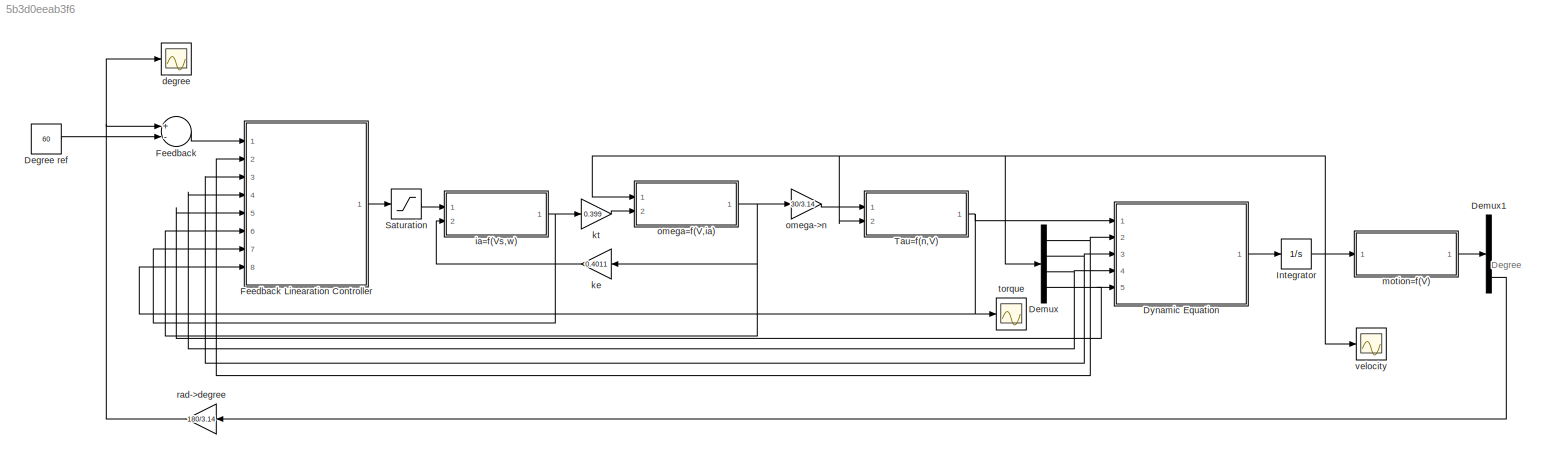
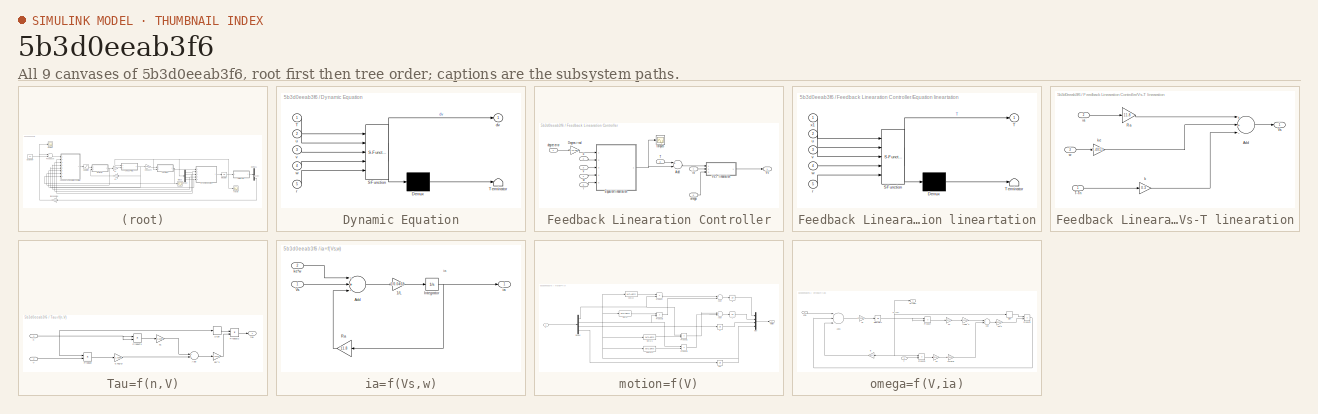
[diagram: thumbnail index - all 9 canvases of the model, root first then tree order]
MODEL slx_5b3d0eeab3f6
KIND model
CONFIG AbsTol = auto
CONFIG FixedStep = auto
CONFIG MaxStep = auto
CONFIG MinStep = auto
CONFIG RelTol = 1e-3
CONFIG SampleTimeConstraint = Unconstrained
CONFIG Solver = VariableStepAuto
CONFIG SolverMode = Auto
CONFIG SolverName = VariableStepAuto
CONFIG StartTime = 0.0
CONFIG StopTime = 30
BLOCK [Constant] Degree ref
  Value = 60
BLOCK [Demux] Demux
  DisplayOption = bar
  Ports = [1, 4]
BLOCK [Demux] Demux1
  DisplayOption = bar
  Ports = [1, 4]
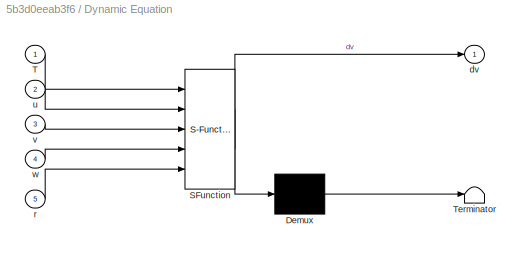
BLOCK [SubSystem] Dynamic Equation
  ErrorFcn = Stateflow.Translate.translate
  PermitHierarchicalResolution = ExplicitOnly
  Ports = [5, 1]
  RequestExecContextInheritance = off
  SFBlockType = MATLAB Function
  TreatAsAtomicUnit = on
  Variant = off
BLOCK [Demux] Dynamic Equation/ Demux 
  Outputs = 1
  Ports = [1, 1]
BLOCK [S-Function] Dynamic Equation/ SFunction 
  EnableBusSupport = on
  FunctionName = sf_sfun
  PortCounts = [5 2]
  Ports = [5, 2]
  SFunctionDeploymentMode = off
  Tag = Stateflow S-Function Feedback_Linearization_Controller 1
BLOCK [Terminator] Dynamic Equation/ Terminator 
BLOCK [Inport] Dynamic Equation/T
  IconDisplay = Port number
BLOCK [Outport] Dynamic Equation/dv
  IconDisplay = Port number
BLOCK [Inport] Dynamic Equation/r
  IconDisplay = Port number
  Port = 5
BLOCK [Inport] Dynamic Equation/u
  IconDisplay = Port number
  Port = 2
BLOCK [Inport] Dynamic Equation/v
  IconDisplay = Port number
  Port = 3
BLOCK [Inport] Dynamic Equation/w
  IconDisplay = Port number
  Port = 4
BLOCK [Sum] Feedback
  InputSameDT = off
  Inputs = +-
  OutDataTypeStr = Inherit: Inherit via internal rule
  Ports = [2, 1]
  SaturateOnIntegerOverflow = off
BLOCK [SubSystem] Feedback Linearation Controller
  Ports = [8, 1]
  RequestExecContextInheritance = off
  Variant = off
BLOCK [Sum] Feedback Linearation Controller/Add
  InputSameDT = off
  Inputs = +-
  OutDataTypeStr = Inherit: Inherit via internal rule
  Ports = [2, 1]
  SaturateOnIntegerOverflow = off
BLOCK [Gain] Feedback Linearation Controller/Degree->rad
  Gain = 3.14/180
  OutDataTypeStr = Inherit: Inherit via internal rule
  ParamDataTypeStr = Inherit: Inherit via internal rule
  SaturateOnIntegerOverflow = off
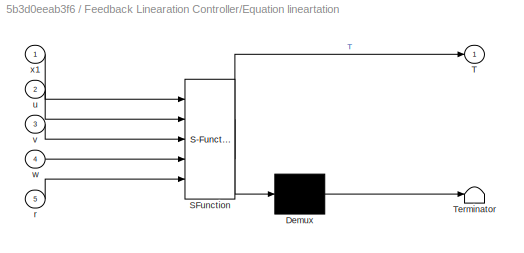
BLOCK [SubSystem] Feedback Linearation Controller/Equation lineartation
  ErrorFcn = Stateflow.Translate.translate
  PermitHierarchicalResolution = ExplicitOnly
  Ports = [5, 1]
  RequestExecContextInheritance = off
  SFBlockType = MATLAB Function
  TreatAsAtomicUnit = on
  Variant = off
BLOCK [Demux] Feedback Linearation Controller/Equation lineartation/ Demux 
  Outputs = 1
  Ports = [1, 1]
BLOCK [S-Function] Feedback Linearation Controller/Equation lineartation/ SFunction 
  EnableBusSupport = on
  FunctionName = sf_sfun
  PortCounts = [5 2]
  Ports = [5, 2]
  SFunctionDeploymentMode = off
  Tag = Stateflow S-Function Feedback_Linearization_Controller 3
BLOCK [Terminator] Feedback Linearation Controller/Equation lineartation/ Terminator 
BLOCK [Outport] Feedback Linearation Controller/Equation lineartation/T
  IconDisplay = Port number
BLOCK [Inport] Feedback Linearation Controller/Equation lineartation/r
  IconDisplay = Port number
  Port = 5
BLOCK [Inport] Feedback Linearation Controller/Equation lineartation/u
  IconDisplay = Port number
  Port = 2
BLOCK [Inport] Feedback Linearation Controller/Equation lineartation/v
  IconDisplay = Port number
  Port = 3
BLOCK [Inport] Feedback Linearation Controller/Equation lineartation/w
  IconDisplay = Port number
  Port = 4
BLOCK [Inport] Feedback Linearation Controller/Equation lineartation/x1
  IconDisplay = Port number
BLOCK [Inport] Feedback Linearation Controller/T
  IconDisplay = Port number
  Port = 8
BLOCK [Outport] Feedback Linearation Controller/Vs
  IconDisplay = Port number
BLOCK [SubSystem] Feedback Linearation Controller/Vs-T linearation
  Ports = [3, 1]
  RequestExecContextInheritance = off
  Variant = off
BLOCK [Sum] Feedback Linearation Controller/Vs-T linearation/Add
  InputSameDT = off
  Inputs = ++-
  OutDataTypeStr = Inherit: Inherit via internal rule
  Ports = [3, 1]
  SaturateOnIntegerOverflow = off
BLOCK [Gain] Feedback Linearation Controller/Vs-T linearation/Ra
  Gain = 11.8
  OutDataTypeStr = Inherit: Inherit via internal rule
  ParamDataTypeStr = Inherit: Inherit via internal rule
  SaturateOnIntegerOverflow = off
BLOCK [Inport] Feedback Linearation Controller/Vs-T linearation/T-Tn
  IconDisplay = Port number
BLOCK [Outport] Feedback Linearation Controller/Vs-T linearation/Vs
  IconDisplay = Port number
BLOCK [Inport] Feedback Linearation Controller/Vs-T linearation/ia
  IconDisplay = Port number
  Port = 2
BLOCK [Gain] Feedback Linearation Controller/Vs-T linearation/k
  Gain = 0.3
  OutDataTypeStr = Inherit: Inherit via internal rule
  ParamDataTypeStr = Inherit: Inherit via internal rule
  SaturateOnIntegerOverflow = off
BLOCK [Gain] Feedback Linearation Controller/Vs-T linearation/ke
  Gain = 0.4011
  OutDataTypeStr = Inherit: Inherit via internal rule
  ParamDataTypeStr = Inherit: Inherit via internal rule
  SaturateOnIntegerOverflow = off
BLOCK [Inport] Feedback Linearation Controller/Vs-T linearation/w
  IconDisplay = Port number
  Port = 3
BLOCK [Inport] Feedback Linearation Controller/degree error
  IconDisplay = Port number
BLOCK [Inport] Feedback Linearation Controller/ia
  IconDisplay = Port number
  Port = 7
BLOCK [Inport] Feedback Linearation Controller/omega
  IconDisplay = Port number
  Port = 6
BLOCK [Inport] Feedback Linearation Controller/r
  IconDisplay = Port number
  Port = 5
BLOCK [Scope] Feedback Linearation Controller/torque3
  Ports = [1]
  ScopeSpecificationString = Simulink.scopes.TimeScopeBlockCfg('CurrentConfiguration', extmgr.ConfigurationSet(extmgr.Configuration('Core','General UI',true),extmgr.Configuration('Core','Source UI',true),extmgr.Configuration('Sources','WiredSimulink',true,'DataLoggingVariableName','ScopeData2'),extmgr.Configuration('Visuals','Time Domain',true,'SerializedDisplays',{struct('MinYLimReal','-1.60445','MaxYLimReal','9.58536','YLab...<+1506ch>
BLOCK [Inport] Feedback Linearation Controller/u
  IconDisplay = Port number
  Port = 2
BLOCK [Inport] Feedback Linearation Controller/v
  IconDisplay = Port number
  Port = 3
BLOCK [Inport] Feedback Linearation Controller/w
  IconDisplay = Port number
  Port = 4
BLOCK [Integrator] Integrator
  Ports = [1, 1]
BLOCK [Saturate] Saturation
  InputPortMap = u0
  LowerLimit = -100
  Ports = [1, 1]
  UpperLimit = 100
BLOCK [SubSystem] Tau=f(n,V)
  Ports = [2, 1]
  RequestExecContextInheritance = off
  Variant = off
BLOCK [Gain] Tau=f(n,V)/0.7a2//D
  Gain = -1.0366
  OutDataTypeStr = Inherit: Inherit via internal rule
  ParamDataTypeStr = Inherit: Inherit via internal rule
  SaturateOnIntegerOverflow = off
BLOCK [Sum] Tau=f(n,V)/Add
  InputSameDT = off
  OutDataTypeStr = Inherit: Inherit via internal rule
  Ports = [2, 1]
  SaturateOnIntegerOverflow = off
BLOCK [Product] Tau=f(n,V)/Product
  InputSameDT = off
  OutDataTypeStr = Inherit: Inherit via internal rule
  Ports = [2, 1]
  RndMeth = Floor
  SaturateOnIntegerOverflow = off
BLOCK [Product] Tau=f(n,V)/Product1
  InputSameDT = off
  OutDataTypeStr = Inherit: Inherit via internal rule
  Ports = [2, 1]
  RndMeth = Floor
  SaturateOnIntegerOverflow = off
BLOCK [Product] Tau=f(n,V)/Product2
  InputSameDT = off
  OutDataTypeStr = Inherit: Inherit via internal rule
  Ports = [2, 1]
  RndMeth = Floor
  SaturateOnIntegerOverflow = off
BLOCK [Signum] Tau=f(n,V)/Sign
BLOCK [Inport] Tau=f(n,V)/V
  IconDisplay = Port number
  Port = 2
BLOCK [Gain] Tau=f(n,V)/a1
  Gain = 0.2299
  OutDataTypeStr = Inherit: Inherit via internal rule
  ParamDataTypeStr = Inherit: Inherit via internal rule
  SaturateOnIntegerOverflow = off
BLOCK [Inport] Tau=f(n,V)/n
  IconDisplay = Port number
BLOCK [Gain] Tau=f(n,V)/pD^4
  Gain = 0.5471
  OutDataTypeStr = Inherit: Inherit via internal rule
  ParamDataTypeStr = Inherit: Inherit via internal rule
  SaturateOnIntegerOverflow = off
BLOCK [Outport] Tau=f(n,V)/tau
  IconDisplay = Port number
BLOCK [Scope] degree
  Ports = [1]
  ScopeSpecificationString = Simulink.scopes.TimeScopeBlockCfg('CurrentConfiguration', extmgr.ConfigurationSet(extmgr.Configuration('Core','General UI',true),extmgr.Configuration('Core','Source UI',true),extmgr.Configuration('Sources','WiredSimulink',true,'DataLoggingVariableName','ScopeData3','DataLogging',true,'DataLoggingSaveFormat','Array'),extmgr.Configuration('Visuals','Time Domain',true,'SerializedDisplays',{struct('Mi...<+1471ch>
BLOCK [SubSystem] ia=f(Vs,w)
  Ports = [2, 1]
  RequestExecContextInheritance = off
  Variant = off
BLOCK [Gain] ia=f(Vs,w)/1//L
  Gain = 1/0.0468
  OutDataTypeStr = Inherit: Inherit via internal rule
  ParamDataTypeStr = Inherit: Inherit via internal rule
  SaturateOnIntegerOverflow = off
BLOCK [Sum] ia=f(Vs,w)/Add
  InputSameDT = off
  Inputs = -+-
  OutDataTypeStr = Inherit: Inherit via internal rule
  Ports = [3, 1]
  SaturateOnIntegerOverflow = off
BLOCK [Integrator] ia=f(Vs,w)/Integrator
  Ports = [1, 1]
BLOCK [Gain] ia=f(Vs,w)/Ra
  Gain = 11.8
  OutDataTypeStr = Inherit: Inherit via internal rule
  ParamDataTypeStr = Inherit: Inherit via internal rule
  SaturateOnIntegerOverflow = off
BLOCK [Inport] ia=f(Vs,w)/Vs
  IconDisplay = Port number
BLOCK [Outport] ia=f(Vs,w)/ia
  IconDisplay = Port number
BLOCK [Inport] ia=f(Vs,w)/ke*w
  IconDisplay = Port number
  Port = 2
BLOCK [Gain] ke
  Gain = 0.4011
  OutDataTypeStr = Inherit: Inherit via internal rule
  ParamDataTypeStr = Inherit: Inherit via internal rule
  SaturateOnIntegerOverflow = off
BLOCK [Gain] kt
  Gain = 0.399
  OutDataTypeStr = Inherit: Inherit via internal rule
  ParamDataTypeStr = Inherit: Inherit via internal rule
  SaturateOnIntegerOverflow = off
BLOCK [SubSystem] motion=f(V)
  Ports = [1, 1]
  RequestExecContextInheritance = off
  Variant = off
BLOCK [Demux] motion=f(V)/Demux
  DisplayOption = bar
  Ports = [1, 4]
BLOCK [Mux] motion=f(V)/Mux
  DisplayOption = bar
  Ports = [4, 1]
BLOCK [Product] motion=f(V)/Product
  InputSameDT = off
  OutDataTypeStr = Inherit: Inherit via internal rule
  Ports = [2, 1]
  RndMeth = Floor
  SaturateOnIntegerOverflow = off
BLOCK [Product] motion=f(V)/Product1
  InputSameDT = off
  OutDataTypeStr = Inherit: Inherit via internal rule
  Ports = [2, 1]
  RndMeth = Floor
  SaturateOnIntegerOverflow = off
BLOCK [Product] motion=f(V)/Product2
  InputSameDT = off
  OutDataTypeStr = Inherit: Inherit via internal rule
  Ports = [2, 1]
  RndMeth = Floor
  SaturateOnIntegerOverflow = off
BLOCK [Product] motion=f(V)/Product3
  InputSameDT = off
  OutDataTypeStr = Inherit: Inherit via internal rule
  Ports = [2, 1]
  RndMeth = Floor
  SaturateOnIntegerOverflow = off
BLOCK [Inport] motion=f(V)/V
  IconDisplay = Port number
BLOCK [MATLABFcn] motion=f(V)/cos(u)
  MATLABFcn = cos(u)
  Ports = [1, 1]
BLOCK [MATLABFcn] motion=f(V)/cos(u)1
  MATLABFcn = cos(u)
  Ports = [1, 1]
BLOCK [Outport] motion=f(V)/motion
  IconDisplay = Port number
BLOCK [Integrator] motion=f(V)/phi
  Ports = [1, 1]
BLOCK [MATLABFcn] motion=f(V)/sin(u)
  MATLABFcn = sin(u)
  Ports = [1, 1]
BLOCK [MATLABFcn] motion=f(V)/sin(u)1
  MATLABFcn = sin(u)
  Ports = [1, 1]
BLOCK [Integrator] motion=f(V)/x
  Ports = [1, 1]
BLOCK [Sum] motion=f(V)/xdot
  InputSameDT = off
  Inputs = +-
  OutDataTypeStr = Inherit: Inherit via internal rule
  Ports = [2, 1]
  SaturateOnIntegerOverflow = off
BLOCK [Integrator] motion=f(V)/y
  Ports = [1, 1]
BLOCK [Sum] motion=f(V)/ydot
  InputSameDT = off
  OutDataTypeStr = Inherit: Inherit via internal rule
  Ports = [2, 1]
  SaturateOnIntegerOverflow = off
BLOCK [Integrator] motion=f(V)/z
  Ports = [1, 1]
BLOCK [Gain] omega->n
  Gain = 30/3.14
  OutDataTypeStr = Inherit: Inherit via internal rule
  ParamDataTypeStr = Inherit: Inherit via internal rule
  SaturateOnIntegerOverflow = off
BLOCK [SubSystem] omega=f(V,ia)
  Ports = [2, 1]
  RequestExecContextInheritance = off
  Variant = off
BLOCK [Gain] omega=f(V,ia)/(30//pi)^2
  Gain = 91.2235
  OutDataTypeStr = Inherit: Inherit via internal rule
  ParamDataTypeStr = Inherit: Inherit via internal rule
  SaturateOnIntegerOverflow = off
BLOCK [Gain] omega=f(V,ia)/1//J
  Gain = 10000/9.275
  OutDataTypeStr = Inherit: Inherit via internal rule
  ParamDataTypeStr = Inherit: Inherit via internal rule
  SaturateOnIntegerOverflow = off
BLOCK [Gain] omega=f(V,ia)/21//(pi*D)
  Gain = 43.9993
  OutDataTypeStr = Inherit: Inherit via internal rule
  ParamDataTypeStr = Inherit: Inherit via internal rule
  SaturateOnIntegerOverflow = off
BLOCK [Sum] omega=f(V,ia)/Add
  InputSameDT = off
  OutDataTypeStr = Inherit: Inherit via internal rule
  Ports = [2, 1]
  SaturateOnIntegerOverflow = off
BLOCK [Sum] omega=f(V,ia)/Add1
  InputSameDT = off
  Inputs = +--
  OutDataTypeStr = Inherit: Inherit via internal rule
  Ports = [3, 1]
  SaturateOnIntegerOverflow = off
BLOCK [Gain] omega=f(V,ia)/B
  Gain = 0.001
  OutDataTypeStr = Inherit: Inherit via internal rule
  ParamDataTypeStr = Inherit: Inherit via internal rule
  SaturateOnIntegerOverflow = off
BLOCK [Integrator] omega=f(V,ia)/Integrator1
  Ports = [1, 1]
BLOCK [Product] omega=f(V,ia)/Product
  InputSameDT = off
  OutDataTypeStr = Inherit: Inherit via internal rule
  Ports = [2, 1]
  RndMeth = Floor
  SaturateOnIntegerOverflow = off
BLOCK [Product] omega=f(V,ia)/Product1
  InputSameDT = off
  OutDataTypeStr = Inherit: Inherit via internal rule
  Ports = [2, 1]
  RndMeth = Floor
  SaturateOnIntegerOverflow = off
BLOCK [Product] omega=f(V,ia)/Product2
  InputSameDT = off
  OutDataTypeStr = Inherit: Inherit via internal rule
  Ports = [2, 1]
  RndMeth = Floor
  SaturateOnIntegerOverflow = off
BLOCK [Signum] omega=f(V,ia)/Sign
BLOCK [Inport] omega=f(V,ia)/V
  IconDisplay = Port number
BLOCK [Gain] omega=f(V,ia)/a3
  Gain = 0.0271
  OutDataTypeStr = Inherit: Inherit via internal rule
  ParamDataTypeStr = Inherit: Inherit via internal rule
  SaturateOnIntegerOverflow = off
BLOCK [Gain] omega=f(V,ia)/a4
  Gain = -0.0157
  OutDataTypeStr = Inherit: Inherit via internal rule
  ParamDataTypeStr = Inherit: Inherit via internal rule
  SaturateOnIntegerOverflow = off
BLOCK [Inport] omega=f(V,ia)/kt*ia
  IconDisplay = Port number
  Port = 2
BLOCK [Gain] omega=f(V,ia)/pD^5
  Gain = 0.0832
  OutDataTypeStr = Inherit: Inherit via internal rule
  ParamDataTypeStr = Inherit: Inherit via internal rule
  SaturateOnIntegerOverflow = off
BLOCK [Outport] omega=f(V,ia)/w (rad//s)
  IconDisplay = Port number
BLOCK [Gain] rad->degree
  Gain = 180/3.14
  OutDataTypeStr = Inherit: Inherit via internal rule
  ParamDataTypeStr = Inherit: Inherit via internal rule
  SaturateOnIntegerOverflow = off
BLOCK [Scope] torque
  Ports = [1]
  ScopeSpecificationString = Simulink.scopes.TimeScopeBlockCfg('CurrentConfiguration', extmgr.ConfigurationSet(extmgr.Configuration('Core','General UI',true),extmgr.Configuration('Core','Source UI',true),extmgr.Configuration('Sources','WiredSimulink',true,'DataLoggingVariableName','ScopeData1'),extmgr.Configuration('Visuals','Time Domain',true,'SerializedDisplays',{struct('MinYLimReal','-1.72485','MaxYLimReal','10.62839','YLa...<+1495ch>
BLOCK [Scope] velocity
  Ports = [1]
  ScopeSpecificationString = Simulink.scopes.TimeScopeBlockCfg('CurrentConfiguration', extmgr.ConfigurationSet(extmgr.Configuration('Core','General UI',true),extmgr.Configuration('Core','Source UI',true),extmgr.Configuration('Sources','WiredSimulink',true),extmgr.Configuration('Visuals','Time Domain',true,'SerializedDisplays',{struct('MinYLimReal','-0.03305','MaxYLimReal','0.25241','YLabelReal','','MinYLimMag','0.00000','MaxY...<+1423ch>
ANNOTATION (root): Degree
ANNOTATION ia=f(Vs,w): ia
ANNOTATION omega=f(V,ia): w (rad/s)
LINE Degree ref:1 -> Feedback:2
LINE Demux1:4 -> rad->degree:1
NET Demux:1 -> Dynamic Equation:2, Feedback Linearation Controller:2
NET Demux:2 -> Dynamic Equation:3, Feedback Linearation Controller:3
NET Demux:3 -> Dynamic Equation:4, Feedback Linearation Controller:4
NET Demux:4 -> Dynamic Equation:5, Feedback Linearation Controller:5
LINE Dynamic Equation:1 -> Integrator:1
LINE Feedback Linearation Controller/Add:1 -> Feedback Linearation Controller/Vs-T linearation:1
LINE Feedback Linearation Controller/Degree->rad:1 -> Feedback Linearation Controller/Equation lineartation:1
NET Feedback Linearation Controller/Equation lineartation:1 -> Feedback Linearation Controller/Add:2, Feedback Linearation Controller/torque3:1
LINE Feedback Linearation Controller/T:1 -> Feedback Linearation Controller/Add:1
LINE Feedback Linearation Controller/Vs-T linearation/Add:1 -> Feedback Linearation Controller/Vs-T linearation/Vs:1
LINE Feedback Linearation Controller/Vs-T linearation/Ra:1 -> Feedback Linearation Controller/Vs-T linearation/Add:1
LINE Feedback Linearation Controller/Vs-T linearation/T-Tn:1 -> Feedback Linearation Controller/Vs-T linearation/k:1
LINE Feedback Linearation Controller/Vs-T linearation/ia:1 -> Feedback Linearation Controller/Vs-T linearation/Ra:1
LINE Feedback Linearation Controller/Vs-T linearation/k:1 -> Feedback Linearation Controller/Vs-T linearation/Add:3
LINE Feedback Linearation Controller/Vs-T linearation/ke:1 -> Feedback Linearation Controller/Vs-T linearation/Add:2
LINE Feedback Linearation Controller/Vs-T linearation/w:1 -> Feedback Linearation Controller/Vs-T linearation/ke:1
LINE Feedback Linearation Controller/Vs-T linearation:1 -> Feedback Linearation Controller/Vs:1
LINE Feedback Linearation Controller/degree error:1 -> Feedback Linearation Controller/Degree->rad:1
LINE Feedback Linearation Controller/ia:1 -> Feedback Linearation Controller/Vs-T linearation:2
LINE Feedback Linearation Controller/omega:1 -> Feedback Linearation Controller/Vs-T linearation:3
LINE Feedback Linearation Controller/r:1 -> Feedback Linearation Controller/Equation lineartation:5
LINE Feedback Linearation Controller/u:1 -> Feedback Linearation Controller/Equation lineartation:2
LINE Feedback Linearation Controller/v:1 -> Feedback Linearation Controller/Equation lineartation:3
LINE Feedback Linearation Controller/w:1 -> Feedback Linearation Controller/Equation lineartation:4
LINE Feedback Linearation Controller:1 -> Saturation:1
LINE Feedback:1 -> Feedback Linearation Controller:1
NET Integrator:1 -> Demux:1, Tau=f(n,V):2, motion=f(V):1, omega=f(V,ia):1, velocity:1
LINE Saturation:1 -> ia=f(Vs,w):1
LINE Tau=f(n,V)/0.7a2//D:1 -> Tau=f(n,V)/Add:2
LINE Tau=f(n,V)/Add:1 -> Tau=f(n,V)/pD^4:1
LINE Tau=f(n,V)/Product1:1 -> Tau=f(n,V)/a1:1
LINE Tau=f(n,V)/Product2:1 -> Tau=f(n,V)/tau:1
LINE Tau=f(n,V)/Product:1 -> Tau=f(n,V)/0.7a2//D:1
LINE Tau=f(n,V)/Sign:1 -> Tau=f(n,V)/Product2:1
LINE Tau=f(n,V)/V:1 -> Tau=f(n,V)/Product:2
LINE Tau=f(n,V)/a1:1 -> Tau=f(n,V)/Add:1
NET Tau=f(n,V)/n:1 -> Tau=f(n,V)/Product1:1, Tau=f(n,V)/Product1:2, Tau=f(n,V)/Product:1, Tau=f(n,V)/Sign:1
LINE Tau=f(n,V)/pD^4:1 -> Tau=f(n,V)/Product2:2
NET Tau=f(n,V):1 -> Dynamic Equation:1, Feedback Linearation Controller:8, torque:1
LINE ia=f(Vs,w)/1//L:1 -> ia=f(Vs,w)/Integrator:1
LINE ia=f(Vs,w)/Add:1 -> ia=f(Vs,w)/1//L:1
NET ia=f(Vs,w)/Integrator:1 -> ia=f(Vs,w)/Ra:1, ia=f(Vs,w)/ia:1
LINE ia=f(Vs,w)/Ra:1 -> ia=f(Vs,w)/Add:3
LINE ia=f(Vs,w)/Vs:1 -> ia=f(Vs,w)/Add:2
LINE ia=f(Vs,w)/ke*w:1 -> ia=f(Vs,w)/Add:1
NET ia=f(Vs,w):1 -> Feedback Linearation Controller:7, kt:1
LINE ke:1 -> ia=f(Vs,w):2
LINE kt:1 -> omega=f(V,ia):2
NET motion=f(V)/Demux:1 -> motion=f(V)/Product1:1, motion=f(V)/Product:2
NET motion=f(V)/Demux:2 -> motion=f(V)/Product2:2, motion=f(V)/Product3:1
LINE motion=f(V)/Demux:3 -> motion=f(V)/z:1
LINE motion=f(V)/Demux:4 -> motion=f(V)/phi:1
LINE motion=f(V)/Mux:1 -> motion=f(V)/motion:1
LINE motion=f(V)/Product1:1 -> motion=f(V)/ydot:1
LINE motion=f(V)/Product2:1 -> motion=f(V)/xdot:2
LINE motion=f(V)/Product3:1 -> motion=f(V)/ydot:2
LINE motion=f(V)/Product:1 -> motion=f(V)/xdot:1
LINE motion=f(V)/V:1 -> motion=f(V)/Demux:1
LINE motion=f(V)/cos(u)1:1 -> motion=f(V)/Product3:2
LINE motion=f(V)/cos(u):1 -> motion=f(V)/Product:1
NET motion=f(V)/phi:1 -> motion=f(V)/Mux:4, motion=f(V)/cos(u)1:1, motion=f(V)/cos(u):1, motion=f(V)/sin(u)1:1, motion=f(V)/sin(u):1
LINE motion=f(V)/sin(u)1:1 -> motion=f(V)/Product1:2
LINE motion=f(V)/sin(u):1 -> motion=f(V)/Product2:1
LINE motion=f(V)/x:1 -> motion=f(V)/Mux:1
LINE motion=f(V)/xdot:1 -> motion=f(V)/x:1
LINE motion=f(V)/y:1 -> motion=f(V)/Mux:2
LINE motion=f(V)/ydot:1 -> motion=f(V)/y:1
LINE motion=f(V)/z:1 -> motion=f(V)/Mux:3
LINE motion=f(V):1 -> Demux1:1
LINE omega->n:1 -> Tau=f(n,V):1
LINE omega=f(V,ia)/(30//pi)^2:1 -> omega=f(V,ia)/Add:1
LINE omega=f(V,ia)/1//J:1 -> omega=f(V,ia)/Integrator1:1
LINE omega=f(V,ia)/21//(pi*D):1 -> omega=f(V,ia)/Add:2
LINE omega=f(V,ia)/Add1:1 -> omega=f(V,ia)/1//J:1
LINE omega=f(V,ia)/Add:1 -> omega=f(V,ia)/pD^5:1
LINE omega=f(V,ia)/B:1 -> omega=f(V,ia)/Add1:3
NET omega=f(V,ia)/Integrator1:1 -> omega=f(V,ia)/B:1, omega=f(V,ia)/Product1:1, omega=f(V,ia)/Product:1, omega=f(V,ia)/Product:2, omega=f(V,ia)/Sign:1, omega=f(V,ia)/w (rad//s):1
LINE omega=f(V,ia)/Product1:1 -> omega=f(V,ia)/a4:1
LINE omega=f(V,ia)/Product2:1 -> omega=f(V,ia)/Add1:2
LINE omega=f(V,ia)/Product:1 -> omega=f(V,ia)/a3:1
LINE omega=f(V,ia)/Sign:1 -> omega=f(V,ia)/Product2:1
LINE omega=f(V,ia)/V:1 -> omega=f(V,ia)/Product1:2
LINE omega=f(V,ia)/a3:1 -> omega=f(V,ia)/(30//pi)^2:1
LINE omega=f(V,ia)/a4:1 -> omega=f(V,ia)/21//(pi*D):1
LINE omega=f(V,ia)/kt*ia:1 -> omega=f(V,ia)/Add1:1
LINE omega=f(V,ia)/pD^5:1 -> omega=f(V,ia)/Product2:2
NET omega=f(V,ia):1 -> Feedback Linearation Controller:6, ke:1, omega->n:1
NET rad->degree:1 -> Feedback:1, degree:1
note: NET lines group one-source signal fan-out (src -> all destinations, sorted); 1:1 wires keep LINE
CHART Dynamic Equation states=1 transitions=1
  STATE_LABEL 'eML_blk_kernel()'
  STATE_LABEL 'SCRIPT:\nfunction dv = fcn(T,u,v,w,r)\n%#codegen\n\n%%velocity\nvel=[u;v;w;r];\n%% propeller\nD=0.152;\n\n%% motor\nJ=9.275*1e-4;\nke=0.4011;\nRa=11.8;\nL=0.0468;\nkt=0.399;\nB=0.001;\nm=128;\ng=9.8;\n\n%%cordinate\nxG=0;yG=0;zG=0.054;\nIz=14.213;\n\n%%matirx\nMrb=[m 0 0 -m*yG;0 m 0 m*xG;0 0 m 0;-m*yG m*xG 0 Iz];\nMa=-1*[-33.48 0 0 0;0 -110.8941 0 -4.921;0 0 -147.576 0;0 -4.921 0 -12.75];\nCrb=-1*[0 0 0 -m*(xG*r+v);0 0 0 -...<+379ch>'
CHART Feedback Linearation Controller/Equation lineartation states=1 transitions=1
  STATE_LABEL 'eML_blk_kernel()'
  STATE_LABEL 'SCRIPT:\nfunction T = fcn(x1,u,v,w,r)\n%#codegen\n\n%%velocity\nvel=[u;v;w;r];\n%% propeller\nD=0.152;\n\n%% motor\nJ=9.275*1e-4;\nke=0.4011;\nRa=11.8;\nL=0.0468;\nkt=0.399;\nB=0.001;\nm=128;\ng=9.8;\n\n%%cordinate\nxG=0;yG=0;zG=0.054;\nIz=14.213;\n\n%%matirx\nMrb=[m 0 0 -m*yG;0 m 0 m*xG;0 0 m 0;-m*yG m*xG 0 Iz];\nMa=-1*[-33.48 0 0 0;0 -110.8941 0 -4.921;0 0 -147.576 0;0 -4.921 0 -12.75];\nCrb=-1*[0 0 0 -m*(xG*r+v);0 0 0 -...<+428ch>'
